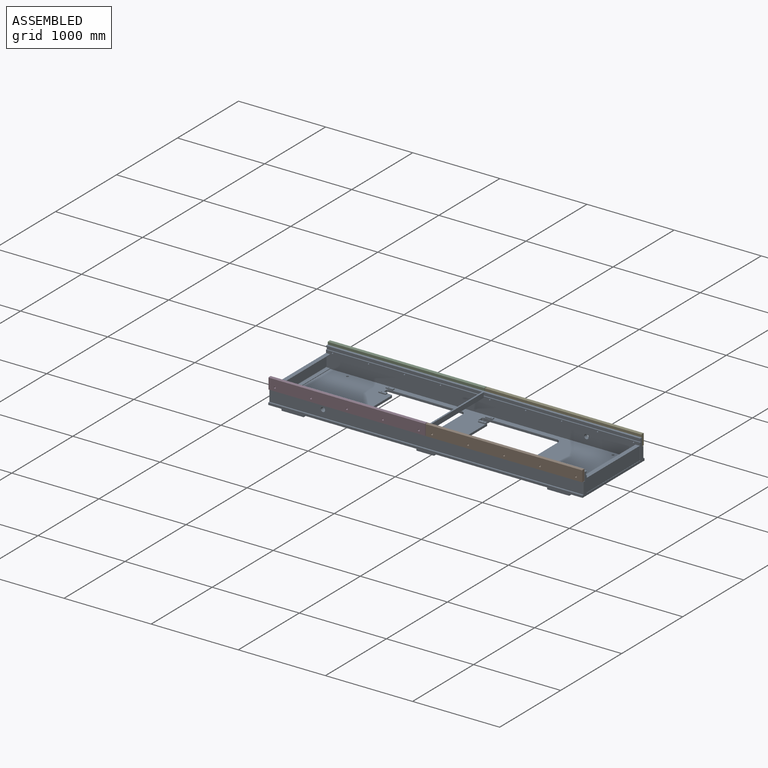
[diagram: assembled view]
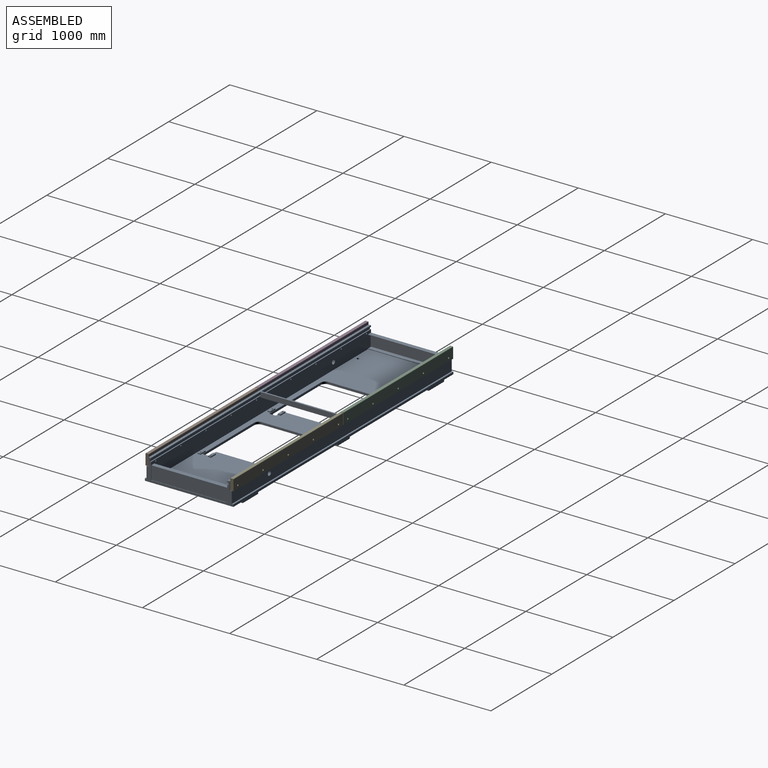
[diagram: assembled view, second angle]
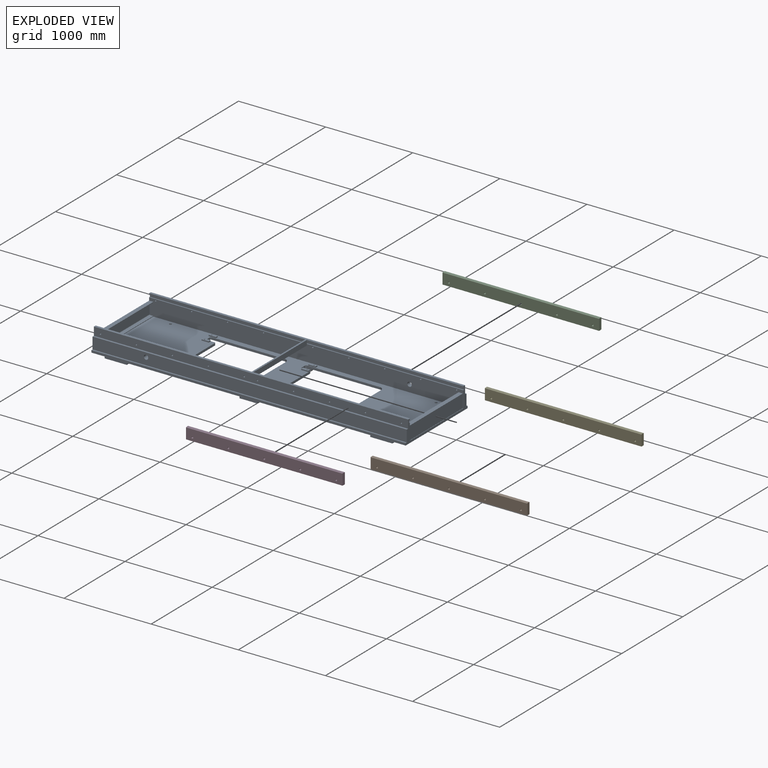
[diagram: exploded view]
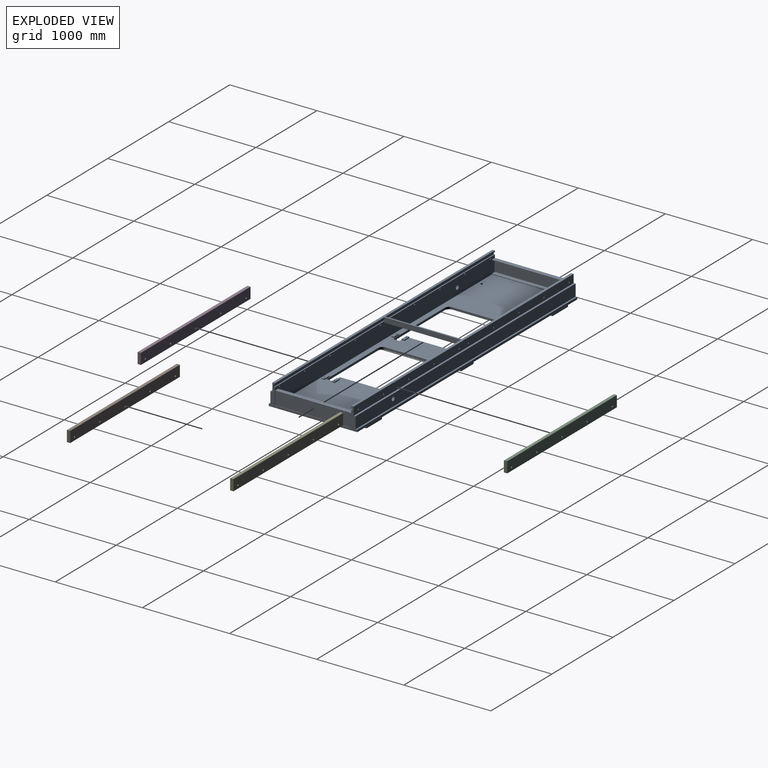
[diagram: exploded view, second angle]
ASSEMBLY  parts=5 mates=4
PART A: 170 faces, bbox 3606.8x1016x273.1 mm
  f0: plane 3504.47x876.3mm, normal (0,0,1), area 1836194.9mm2, adj f1,f3,f19,f20,f21,f22,f23,f24
  f1: plane 3606.8x187.2mm, normal (0,1,0), area 667629.5mm2, adj f0,f5,f6,f11,f73,f75,f77,f79
  f2: plane 1791.48x16mm, normal (0,1,0), area 28667.2mm2, adj f5,f66,f144,f147
  f3: plane 3606.8x187.2mm, normal (0,-1,0), area 667629.5mm2, adj f0,f5,f6,f11,f72,f74,f76,f78
  f4: plane 1791.48x16mm, normal (0,-1,0), area 28667.2mm2, adj f5,f66,f144,f150
  f5: plane 1016x254mm, normal (-1,0,0), area 177694.8mm2, adj f1,f2,f3,f4,f9,f10,f15,f16
  f6: plane 1016x254mm, normal (1,0,0), area 44146.7mm2, adj f1,f3,f7,f8,f9,f10,f11,f13
  f7: plane 1796.27x16mm, normal (0,1,0), area 28743.9mm2, adj f6,f66,f143,f147
  f8: plane 1796.27x16mm, normal (0,-1,0), area 28743.9mm2, adj f6,f66,f143,f150
  f9: plane 3606.8x133.35mm, normal (0,-1,0), area 478940mm2, adj f5,f6,f15,f70,f93
  f10: plane 3606.8x19.05mm, normal (0,0,1), area 68709.5mm2, adj f5,f6,f18,f67
  f11: plane 876.3x4.79mm, normal (0,0,1), area 4200.3mm2, adj f1,f3,f6,f161
  f12: plane 1293x1016mm, normal (0,0,-1), area 711889.6mm2, adj f17,f18,f35,f36,f37,f38,f39,f40
  f13: plane 1016x152.4mm, normal (0,0,-1), area 154838.4mm2, adj f6,f17,f18,f55
  f14: plane 1297.8x1016mm, normal (0,0,-1), area 716759.6mm2, adj f17,f18,f19,f23,f24,f25,f26,f27
  f15: plane 3606.8x19.05mm, normal (0,0,1), area 68709.5mm2, adj f5,f6,f9,f17
  f16: plane 1016x152.4mm, normal (0,0,-1), area 154838.4mm2, adj f5,f17,f18,f51
  f17: plane 3606.8x44.45mm, normal (0,-1,0), area 105161.1mm2, adj f5,f6,f12,f13,f14,f15,f16,f51
  f18: plane 3606.8x44.45mm, normal (0,1,0), area 105161.1mm2, adj f5,f6,f10,f12,f13,f14,f16,f51
  f19: plane 835.03x44.45mm, normal (0,-1,0), area 22116.9mm2, adj f0,f14,f20,f34,f57,f61
  f20: cylinder r=12.7mm len=44.45mm, axis (0,0,1), area 886.7mm2, adj f0,f19,f21,f61
  f21: plane 50.8x44.45mm, normal (1,0,0), area 2258.1mm2, adj f0,f20,f22,f61
  f22: cylinder r=12.7mm len=44.45mm, axis (0,0,1), area 886.7mm2, adj f0,f21,f23,f61
  f23: plane 85.73x44.45mm, normal (0,1,0), area 3084.7mm2, adj f0,f14,f22,f24,f58,f61
  f24: cylinder r=12.7mm len=25.4mm, axis (0,0,1), area 506.7mm2, adj f0,f14,f23,f25
  f25: plane 609.6x25.4mm, normal (1,0,0), area 15483.8mm2, adj f0,f14,f24,f26
  f26: cylinder r=50.8mm len=50.8mm, axis (0,0,1), area 2026.8mm2, adj f0,f14,f25,f27
  f27: plane 835.03x25.4mm, normal (0,1,0), area 21209.6mm2, adj f0,f14,f26,f28
  f28: cylinder r=12.7mm len=25.4mm, axis (0,0,1), area 506.7mm2, adj f0,f14,f27,f29
  f29: plane 50.8x25.4mm, normal (-1,0,0), area 1290.3mm2, adj f0,f14,f28,f30
  f30: cylinder r=12.7mm len=25.4mm, axis (0,0,1), area 506.7mm2, adj f0,f14,f29,f31
  f31: plane 85.73x25.4mm, normal (0,-1,0), area 2177.4mm2, adj f0,f14,f30,f32
  f32: cylinder r=12.7mm len=25.4mm, axis (0,0,1), area 506.7mm2, adj f0,f14,f31,f33
  f33: plane 609.6x25.4mm, normal (-1,0,0), area 15483.8mm2, adj f0,f14,f32,f34
  f34: cylinder r=50.8mm len=50.8mm, axis (0,0,1), area 2026.8mm2, adj f0,f14,f19,f33
  f35: plane 609.6x25.4mm, normal (-1,0,0), area 15483.8mm2, adj f0,f12,f36,f50
  f36: cylinder r=50.8mm len=50.8mm, axis (0,0,1), area 2026.8mm2, adj f0,f12,f35,f37
  f37: plane 835.03x25.4mm, normal (0,-1,0), area 21209.6mm2, adj f0,f12,f36,f38
  f38: cylinder r=12.7mm len=25.4mm, axis (0,0,1), area 506.7mm2, adj f0,f12,f37,f39
  f39: plane 50.8x25.4mm, normal (1,0,0), area 1290.3mm2, adj f0,f12,f38,f40
  f40: cylinder r=12.7mm len=25.4mm, axis (0,0,1), area 506.7mm2, adj f0,f12,f39,f41
  f41: plane 85.73x25.4mm, normal (0,1,0), area 2177.4mm2, adj f0,f12,f40,f42
  f42: cylinder r=12.7mm len=25.4mm, axis (0,0,1), area 506.7mm2, adj f0,f12,f41,f43
  f43: plane 609.6x25.4mm, normal (1,0,0), area 15483.8mm2, adj f0,f12,f42,f44
  f44: cylinder r=50.8mm len=50.8mm, axis (0,0,1), area 2026.8mm2, adj f0,f12,f43,f45
  f45: plane 835.03x44.45mm, normal (0,1,0), area 22116.9mm2, adj f0,f12,f44,f46,f59,f61
  f46: cylinder r=12.7mm len=44.45mm, axis (0,0,1), area 886.7mm2, adj f0,f45,f47,f61
  f47: plane 50.8x44.45mm, normal (-1,0,0), area 2258.1mm2, adj f0,f46,f48,f61
  f48: cylinder r=12.7mm len=44.45mm, axis (0,0,1), area 886.7mm2, adj f0,f47,f49,f61
  f49: plane 85.73x44.45mm, normal (0,-1,0), area 3084.7mm2, adj f0,f12,f48,f50,f60,f61
  f50: cylinder r=12.7mm len=25.4mm, axis (0,0,1), area 506.7mm2, adj f0,f12,f35,f49
  f51: plane 1016x19.05mm, normal (-1,0,0), area 19354.8mm2, adj f16,f17,f18,f53
  f52: plane 1016x19.05mm, normal (1,0,0), area 19354.8mm2, adj f12,f17,f18,f53
  f53: plane 1016x254mm, normal (0,0,-1), area 256918.9mm2, adj f17,f18,f51,f52,f62,f63
  f54: plane 1016x19.05mm, normal (-1,0,0), area 19354.8mm2, adj f14,f17,f18,f56
  f55: plane 1016x19.05mm, normal (1,0,0), area 19354.8mm2, adj f13,f17,f18,f56
  f56: plane 1016x254mm, normal (0,0,-1), area 256918.9mm2, adj f17,f18,f54,f55,f64,f65
  f57: plane 133.35x19.05mm, normal (1,0,0), area 2540.3mm2, adj f14,f18,f19,f61
  f58: plane 806.45x19.05mm, normal (1,0,0), area 15362.9mm2, adj f14,f17,f23,f61
  f59: plane 133.35x19.05mm, normal (-1,0,0), area 2540.3mm2, adj f12,f17,f45,f61
  f60: plane 806.45x19.05mm, normal (-1,0,0), area 15362.9mm2, adj f12,f18,f49,f61
  f61: plane 1016x203.2mm, normal (0,0,-1), area 197396.1mm2, adj f17,f18,f19,f20,f21,f22,f23,f45
  f62: cylinder r=13.5mm len=44.45mm, axis (0,0,-1), area 3770.4mm2, adj f0,f53
  f63: cylinder r=13.5mm len=44.45mm, axis (0,0,-1), area 3770.4mm2, adj f0,f53
  f64: cylinder r=13.5mm len=44.45mm, axis (0,0,-1), area 3770.4mm2, adj f0,f56
  f65: cylinder r=13.5mm len=44.45mm, axis (0,0,-1), area 3770.4mm2, adj f0,f56
  f66: plane 3606.8x933.45mm, normal (0,0,1), area 222822.1mm2, adj f2,f4,f5,f6,f7,f8,f69,f71
  f67: plane 3606.8x133.35mm, normal (0,1,0), area 478940mm2, adj f5,f6,f10,f68,f92
  f68: plane 3606.8x22.23mm, normal (0,0,1), area 80161.1mm2, adj f5,f6,f67,f69
  f69: plane 3606.8x95.25mm, normal (0,1,0), area 341365.8mm2, adj f5,f6,f66,f68,f72,f74,f76,f78
  f70: plane 3606.8x22.23mm, normal (0,0,1), area 80161.1mm2, adj f5,f6,f9,f71
  f71: plane 3606.8x95.25mm, normal (0,-1,0), area 341365.8mm2, adj f5,f6,f66,f70,f73,f75,f77,f79
  f72: cylinder r=8.33mm len=28.58mm, axis (0,-1,0), area 1496.3mm2, adj f3,f69
  f73: cylinder r=8.33mm len=28.58mm, axis (0,-1,0), area 1496.3mm2, adj f1,f71
  f74: cylinder r=8.33mm len=28.58mm, axis (0,-1,0), area 1496.3mm2, adj f3,f69
  f75: cylinder r=8.33mm len=28.58mm, axis (0,-1,0), area 1496.3mm2, adj f1,f71
  f76: cylinder r=8.33mm len=28.58mm, axis (0,-1,0), area 1496.3mm2, adj f3,f69
  f77: cylinder r=8.33mm len=28.58mm, axis (0,-1,0), area 1496.3mm2, adj f1,f71
  f78: cylinder r=8.33mm len=28.58mm, axis (0,-1,0), area 1496.3mm2, adj f3,f69
  f79: cylinder r=8.33mm len=28.58mm, axis (0,-1,0), area 1496.3mm2, adj f1,f71
  f80: cylinder r=8.33mm len=28.58mm, axis (0,-1,0), area 1496.3mm2, adj f3,f69
  f81: cylinder r=8.33mm len=28.58mm, axis (0,-1,0), area 1496.3mm2, adj f1,f71
  f82: cylinder r=8.33mm len=28.58mm, axis (0,-1,0), area 1496.3mm2, adj f3,f69
  f83: cylinder r=8.33mm len=28.58mm, axis (0,-1,0), area 1496.3mm2, adj f1,f71
  f84: cylinder r=8.33mm len=28.58mm, axis (0,-1,0), area 1496.3mm2, adj f3,f69
  f85: cylinder r=8.33mm len=28.58mm, axis (0,-1,0), area 1496.3mm2, adj f1,f71
  f86: cylinder r=8.33mm len=28.58mm, axis (0,-1,0), area 1496.3mm2, adj f3,f69
  f87: cylinder r=8.33mm len=28.58mm, axis (0,-1,0), area 1496.3mm2, adj f1,f71
  f88: cylinder r=8.33mm len=28.58mm, axis (0,-1,0), area 1496.3mm2, adj f3,f69
  f89: cylinder r=8.33mm len=28.58mm, axis (0,-1,0), area 1496.3mm2, adj f1,f71
  f90: cylinder r=8.33mm len=28.58mm, axis (0,-1,0), area 1496.3mm2, adj f3,f69
  f91: cylinder r=8.33mm len=28.58mm, axis (0,-1,0), area 1496.3mm2, adj f1,f71
  f92: cylinder r=25.4mm len=50.8mm, axis (0,-1,0), area 8107.3mm2, adj f3,f67
  f93: cylinder r=25.4mm len=50.8mm, axis (0,1,0), area 8107.3mm2, adj f1,f9
  f94: plane 82.55x12.7mm, normal (0,1,0), area 1048.4mm2, adj f0,f95,f97,f98
  f95: plane 31.75x12.7mm, normal (-1,0,0), area 403.2mm2, adj f0,f94,f96,f98
  f96: plane 82.55x12.7mm, normal (0,-1,0), area 1048.4mm2, adj f0,f95,f97,f98
  f97: plane 31.75x12.7mm, normal (1,0,0), area 403.2mm2, adj f0,f94,f96,f98
  f98: plane 82.55x31.75mm, normal (0,0,1), area 2478mm2, adj f94,f95,f96,f97,f134
  f99: plane 31.75x12.7mm, normal (1,0,0), area 403.2mm2, adj f0,f100,f102,f103
  f100: plane 82.55x12.7mm, normal (0,1,0), area 1048.4mm2, adj f0,f99,f101,f103
  f101: plane 31.75x12.7mm, normal (-1,0,0), area 403.2mm2, adj f0,f100,f102,f103
  f102: plane 82.55x12.7mm, normal (0,-1,0), area 1048.4mm2, adj f0,f99,f101,f103
  f103: plane 82.55x31.75mm, normal (0,0,1), area 2478mm2, adj f99,f100,f101,f102,f135
  f104: plane 31.75x12.7mm, normal (-1,0,0), area 403.2mm2, adj f0,f105,f107,f108
  f105: plane 82.55x12.7mm, normal (0,-1,0), area 1048.4mm2, adj f0,f104,f106,f108
  f106: plane 31.75x12.7mm, normal (1,0,0), area 403.2mm2, adj f0,f105,f107,f108
  f107: plane 82.55x12.7mm, normal (0,1,0), area 1048.4mm2, adj f0,f104,f106,f108
  f108: plane 82.55x31.75mm, normal (0,0,1), area 2478mm2, adj f104,f105,f106,f107,f138
  f109: plane 82.55x12.7mm, normal (0,1,0), area 1048.4mm2, adj f0,f110,f112,f113
  f110: plane 31.75x12.7mm, normal (-1,0,0), area 403.2mm2, adj f0,f109,f111,f113
  f111: plane 82.55x12.7mm, normal (0,-1,0), area 1048.4mm2, adj f0,f110,f112,f113
  f112: plane 31.75x12.7mm, normal (1,0,0), area 403.2mm2, adj f0,f109,f111,f113
  f113: plane 82.55x31.75mm, normal (0,0,1), area 2478mm2, adj f109,f110,f111,f112,f139
  f114: plane 82.55x12.7mm, normal (0,-1,0), area 1048.4mm2, adj f0,f115,f117,f118
  f115: plane 31.75x12.7mm, normal (1,0,0), area 403.2mm2, adj f0,f114,f116,f118
  f116: plane 82.55x12.7mm, normal (0,1,0), area 1048.4mm2, adj f0,f115,f117,f118
  f117: plane 31.75x12.7mm, normal (-1,0,0), area 403.2mm2, adj f0,f114,f116,f118
  f118: plane 82.55x31.75mm, normal (0,0,1), area 2478mm2, adj f114,f115,f116,f117,f136
  f119: plane 82.55x12.7mm, normal (0,-1,0), area 1048.4mm2, adj f0,f120,f122,f123
  f120: plane 31.75x12.7mm, normal (1,0,0), area 403.2mm2, adj f0,f119,f121,f123
  f121: plane 82.55x12.7mm, normal (0,1,0), area 1048.4mm2, adj f0,f120,f122,f123
  f122: plane 31.75x12.7mm, normal (-1,0,0), area 403.2mm2, adj f0,f119,f121,f123
  f123: plane 82.55x31.75mm, normal (0,0,1), area 2478mm2, adj f119,f120,f121,f122,f137
  f124: plane 82.55x12.7mm, normal (0,-1,0), area 1048.4mm2, adj f0,f125,f127,f128
  f125: plane 31.75x12.7mm, normal (1,0,0), area 403.2mm2, adj f0,f124,f126,f128
  f126: plane 82.55x12.7mm, normal (0,1,0), area 1048.4mm2, adj f0,f125,f127,f128
  f127: plane 31.75x12.7mm, normal (-1,0,0), area 403.2mm2, adj f0,f124,f126,f128
  f128: plane 82.55x31.75mm, normal (0,0,1), area 2478mm2, adj f124,f125,f126,f127,f140
  f129: plane 82.55x12.7mm, normal (0,-1,0), area 1048.4mm2, adj f0,f130,f132,f133
  f130: plane 31.75x12.7mm, normal (1,0,0), area 403.2mm2, adj f0,f129,f131,f133
  f131: plane 82.55x12.7mm, normal (0,1,0), area 1048.4mm2, adj f0,f130,f132,f133
  f132: plane 31.75x12.7mm, normal (-1,0,0), area 403.2mm2, adj f0,f129,f131,f133
  f133: plane 82.55x31.75mm, normal (0,0,1), area 2478mm2, adj f129,f130,f131,f132,f141
  f134: cylinder r=6.75mm len=38.1mm, axis (0,0,1), area 1615mm2, adj f12,f98
  f135: cylinder r=6.75mm len=38.1mm, axis (0,0,1), area 1615mm2, adj f12,f103
  f136: cylinder r=6.75mm len=38.1mm, axis (0,0,1), area 1615mm2, adj f12,f118
  f137: cylinder r=6.75mm len=38.1mm, axis (0,0,1), area 1615mm2, adj f12,f123
  f138: cylinder r=6.75mm len=38.1mm, axis (0,0,1), area 1615mm2, adj f14,f108
  f139: cylinder r=6.75mm len=38.1mm, axis (0,0,1), area 1615mm2, adj f14,f113
  f140: cylinder r=6.75mm len=38.1mm, axis (0,0,1), area 1615mm2, adj f14,f128
  f141: cylinder r=6.75mm len=38.1mm, axis (0,0,1), area 1615mm2, adj f14,f133
  f142: plane 876.3x19.05mm, normal (0,0,-1), area 16693.5mm2, adj f1,f3,f143,f144
  f143: plane 876.3x57.15mm, normal (1,0,0), area 50080.5mm2, adj f1,f3,f7,f8,f66,f142,f145,f149
  f144: plane 876.3x57.15mm, normal (-1,0,0), area 50080.5mm2, adj f1,f2,f3,f4,f66,f142,f145,f149
  f145: plane 25.4x19.05mm, normal (0,-1,0), area 483.9mm2, adj f143,f144,f146,f147
  f146: plane 3606.8x12.83mm, normal (0,0,1), area 46264.4mm2, adj f1,f5,f6,f145,f148
  f147: plane 3606.8x12.83mm, normal (0,0,-1), area 46264.4mm2, adj f2,f5,f6,f7,f145,f148
  f148: plane 3606.8x25.4mm, normal (0,1,0), area 91612.7mm2, adj f5,f6,f146,f147
  f149: plane 25.4x19.05mm, normal (0,1,0), area 483.9mm2, adj f143,f144,f150,f151
  f150: plane 3606.8x12.83mm, normal (0,0,-1), area 46264.4mm2, adj f4,f5,f6,f8,f149,f152
  f151: plane 3606.8x12.83mm, normal (0,0,1), area 46264.4mm2, adj f3,f5,f6,f149,f152
  f152: plane 3606.8x25.4mm, normal (0,-1,0), area 91612.7mm2, adj f5,f6,f150,f151
  f153: plane 876.3x6.35mm, normal (1,0,0), area 5564.5mm2, adj f0,f1,f3,f154
  f154: plane 876.3x36.07mm, normal (0,0,1), area 31606.4mm2, adj f1,f3,f153,f155
  f155: cylinder r=6.35mm len=876.3mm, axis (0,1,0), area 8740.7mm2, adj f1,f3,f154,f156
  f156: plane 876.3x127mm, normal (1,0,0), area 111290.1mm2, adj f1,f3,f155,f157
  f157: cylinder r=6.35mm len=876.3mm, axis (0,1,0), area 8740.7mm2, adj f1,f3,f156,f158
  f158: plane 876.3x36.07mm, normal (0,0,-1), area 31606.4mm2, adj f1,f3,f157,f159
  f159: plane 876.3x6.35mm, normal (1,0,0), area 5564.5mm2, adj f1,f3,f158,f160
  f160: plane 876.3x48.77mm, normal (0,0,1), area 42735.4mm2, adj f1,f3,f5,f159
  f161: plane 876.3x152.4mm, normal (1,0,0), area 133548.1mm2, adj f1,f3,f11,f162
  f162: plane 876.3x48.77mm, normal (0,0,1), area 42735.4mm2, adj f1,f3,f161,f163
  f163: plane 876.3x6.35mm, normal (-1,0,0), area 5564.5mm2, adj f1,f3,f162,f164
  f164: plane 876.3x36.07mm, normal (0,0,-1), area 31606.4mm2, adj f1,f3,f163,f165
  f165: cylinder r=6.35mm len=876.3mm, axis (0,1,0), area 8740.7mm2, adj f1,f3,f164,f166
  f166: plane 876.3x127mm, normal (-1,0,0), area 111290.1mm2, adj f1,f3,f165,f167
  f167: cylinder r=6.35mm len=876.3mm, axis (0,1,0), area 8740.7mm2, adj f1,f3,f166,f168
  f168: plane 876.3x36.07mm, normal (0,0,1), area 31606.4mm2, adj f1,f3,f167,f169
  f169: plane 876.3x6.35mm, normal (-1,0,0), area 5564.5mm2, adj f0,f1,f3,f168
PART B: 13 faces, bbox 1797.1x38.1x127 mm
  f0: plane 1797.05x123.83mm, normal (0,-1,0), area 220847.2mm2, adj f1,f4,f5,f6,f8,f9,f10,f11
  f1: plane 1797.05x38.1mm, normal (0,0,-1), area 68467.6mm2, adj f0,f2,f4,f5
  f2: plane 1797.05x123.83mm, normal (0,1,0), area 220847.2mm2, adj f1,f4,f5,f7,f8,f9,f10,f11
  f3: plane 1797.05x31.75mm, normal (0,0,1), area 57056.3mm2, adj f4,f5,f6,f7
  f4: plane 127x38.1mm, normal (1,0,0), area 4828.6mm2, adj f0,f1,f2,f3,f6,f7
  f5: plane 127x38.1mm, normal (-1,0,0), area 4828.6mm2, adj f0,f1,f2,f3,f6,f7
  f6: plane 1797.05x3.18mm, normal (0,-0.71,0.71), area 8069mm2, adj f0,f3,f4,f5
  f7: plane 1797.05x3.18mm, normal (0,0.71,0.71), area 8069mm2, adj f2,f3,f4,f5
  f8: cylinder r=10.32mm len=38.1mm, axis (0,1,0), area 2470.2mm2, adj f0,f2
  f9: cylinder r=10.32mm len=38.1mm, axis (0,1,0), area 2470.2mm2, adj f0,f2
  f10: cylinder r=10.32mm len=38.1mm, axis (0,1,0), area 2470.2mm2, adj f0,f2
  f11: cylinder r=10.32mm len=38.1mm, axis (0,1,0), area 2470.2mm2, adj f0,f2
  f12: cylinder r=10.32mm len=38.1mm, axis (0,1,0), area 2470.2mm2, adj f0,f2
PART C: same geometry as B
PART D: same geometry as B
PART E: same geometry as B
PLACE A at identity fixed
PLACE B t=(901.57,-485.78,222.25)mm
PLACE C t=(-901.83,485.78,222.25)mm
PLACE D t=(-901.83,-485.78,222.25)mm
PLACE E t=(901.57,485.77,222.25)mm
MATE fastened E.f12 <-> A.f82  axis (0,-1,0) through (76.2,466.72,196.85)mm
MATE fastened C.f12 <-> A.f72  axis (0,-1,0) through (-1727.2,466.73,196.85)mm
MATE fastened D.f8 <-> A.f80  axis (0,1,0) through (-76.2,-466.73,196.85)mm
MATE fastened B.f8 <-> A.f90  axis (0,1,0) through (1727.2,-466.73,196.85)mm
